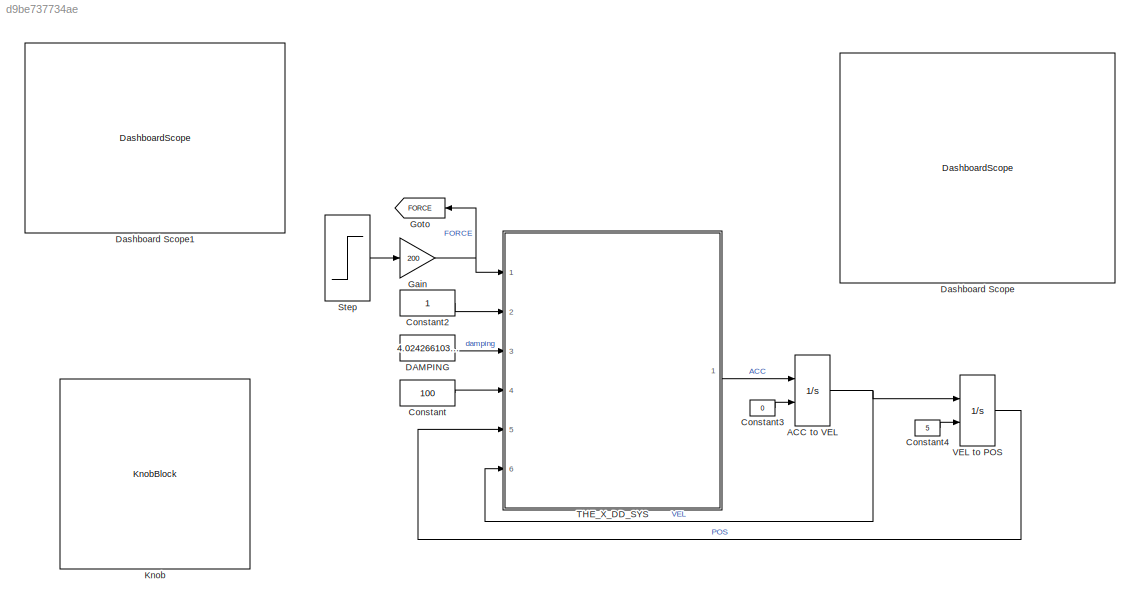
MODEL slx_d9be737734ae
KIND model
CONFIG AbsTol = auto
CONFIG EnableMultiTasking = off
CONFIG FixedStep = auto
CONFIG MaxStep = auto
CONFIG MinStep = auto
CONFIG RelTol = 1e-7
CONFIG SampleTimeConstraint = Unconstrained
CONFIG SolverName = ode45
CONFIG StartTime = 0.0
CONFIG StopTime = 10.0
BLOCK [Integrator] ACC to VEL
  InitialConditionSource = external
  Ports = [2, 1]
BLOCK [Constant] Constant
  Value = 100
BLOCK [Constant] Constant2
BLOCK [Constant] Constant3
  Value = 0
BLOCK [Constant] Constant4
  Value = 5
BLOCK [Constant] DAMPING
  Value = 4.0242661031087
BLOCK [DashboardScope] Dashboard Scope
BLOCK [DashboardScope] Dashboard Scope1
BLOCK [Gain] Gain
  Gain = 200
BLOCK [Goto] Goto
  GotoTag = FORCE
  NameLocation = top
BLOCK [KnobBlock] Knob
  ScaleMax = 15
  ScaleMin = 1
BLOCK [Step] Step
  SampleTime = 0
  Time = 5
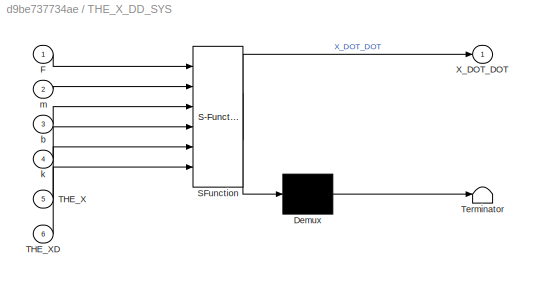
BLOCK [SubSystem] THE_X_DD_SYS
  ErrorFcn = Stateflow.Translate.translate
  PermitHierarchicalResolution = ExplicitOnly
  Ports = [6, 1]
  RequestExecContextInheritance = off
  SFBlockType = MATLAB Function
  TreatAsAtomicUnit = on
BLOCK [Demux] THE_X_DD_SYS/ Demux 
  Outputs = 1
  Ports = [1, 1]
BLOCK [S-Function] THE_X_DD_SYS/ SFunction 
  EnableBusSupport = on
  FunctionName = sf_sfun
  PortCounts = [6 2]
  Ports = [6, 2]
  SFcnIsStateOwnerBlock = off
  SFunctionDeploymentMode = off
  Tag = Stateflow S-Function 1
BLOCK [Terminator] THE_X_DD_SYS/ Terminator 
BLOCK [Inport] THE_X_DD_SYS/F
BLOCK [Inport] THE_X_DD_SYS/THE_X
  Port = 5
BLOCK [Inport] THE_X_DD_SYS/THE_XD
  Port = 6
BLOCK [Outport] THE_X_DD_SYS/X_DOT_DOT
BLOCK [Inport] THE_X_DD_SYS/b
  Port = 3
BLOCK [Inport] THE_X_DD_SYS/k
  Port = 4
BLOCK [Inport] THE_X_DD_SYS/m
  Port = 2
BLOCK [Integrator] VEL to POS
  InitialConditionSource = external
  Ports = [2, 1]
NET ACC to VEL:1 -> THE_X_DD_SYS:6, VEL to POS:1
LINE Constant2:1 -> THE_X_DD_SYS:2
LINE Constant3:1 -> ACC to VEL:2
LINE Constant4:1 -> VEL to POS:2
LINE Constant:1 -> THE_X_DD_SYS:4
LINE DAMPING:1 -> THE_X_DD_SYS:3
NET Gain:1 -> Goto:1, THE_X_DD_SYS:1
LINE Step:1 -> Gain:1
LINE THE_X_DD_SYS:1 -> ACC to VEL:1
LINE VEL to POS:1 -> THE_X_DD_SYS:5
note: NET lines group one-source signal fan-out (src -> all destinations, sorted); 1:1 wires keep LINE
CHART THE_X_DD_SYS states=1 transitions=1
  STATE_LABEL 'eML_blk_kernel()'
  STATE_LABEL 'SCRIPT:\nfunction X_DOT_DOT = THE_X_DD_SYS(F,m,b,k,THE_X,THE_XD)\n%#codegen\n\n%    This function was generated by the Symbolic Math Toolbox version 7.2.\n%    27-Mar-2017 09:20:04\n\nX_DOT_DOT = -(-F+THE_XD.*b+THE_X.*k)./m;\n'
CHART  states=0 transitions=0
